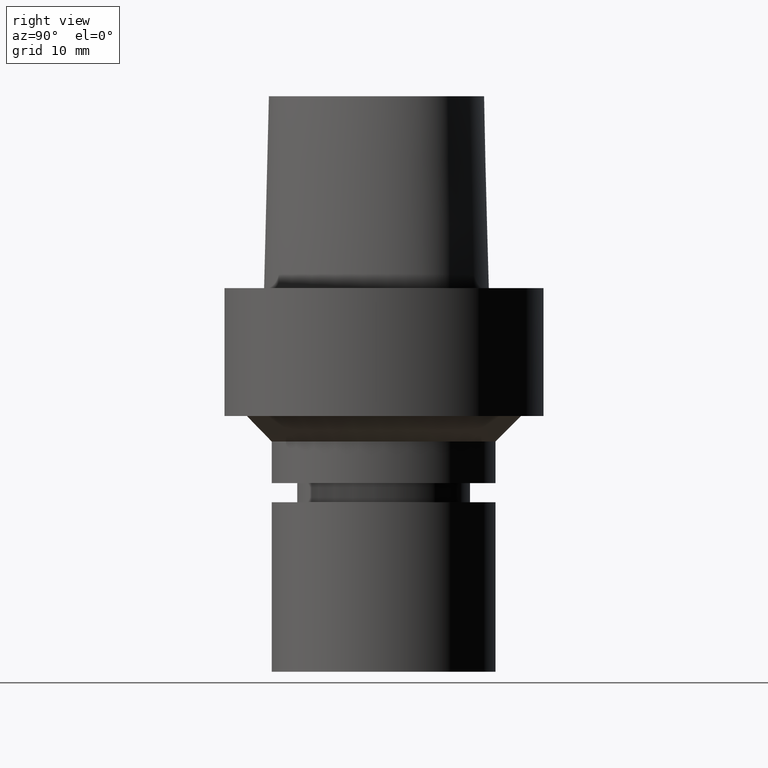
[diagram: clean part render]
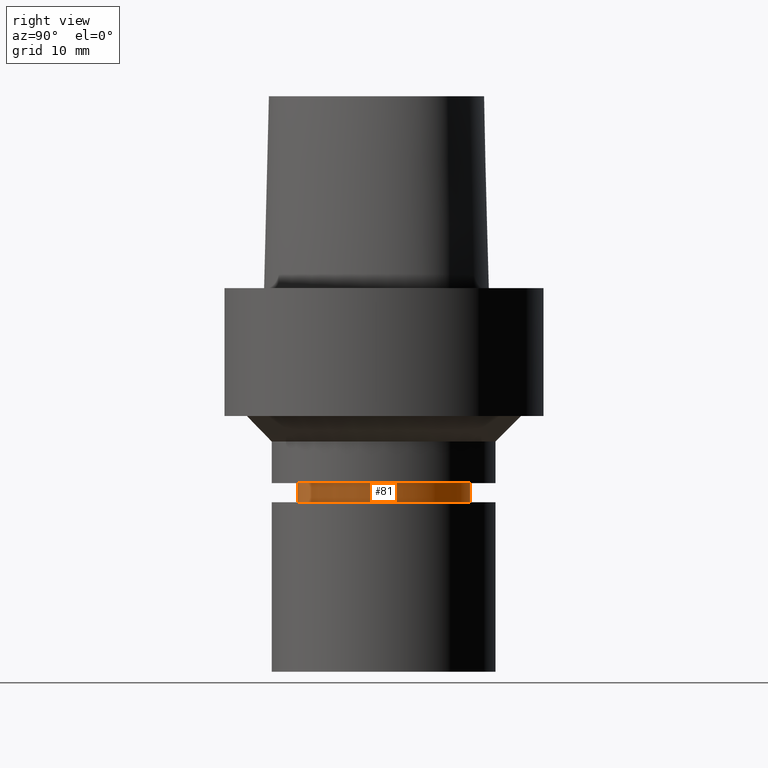
[diagram: same view with one face highlighted and labeled with its STEP entity id]
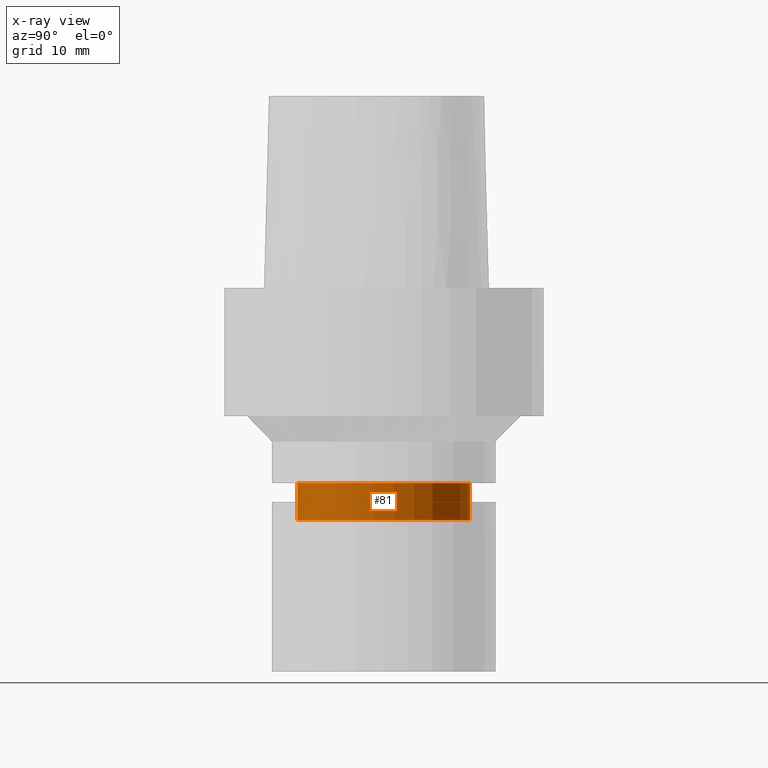
[diagram: x-ray of the same camera — body ghosted, the highlighted face saturated]
A machine part, right view. The second image highlights one B-rep face of the part: STEP entity #81.
The next image is the same camera in x-ray: the body ghosted, the highlighted face saturated — about 0% of this face is hidden behind the body in this view.
In plain terms, the highlighted cylindrical surface (bore or boss wall) has radius 13.5 mm, axis along (0, 0, -1).
Its self-contained STEP definition (entity closure, byte-faithful):
#78=EDGE_CURVE('Unnamed[1]',#186,#186,#187,.T.);
#81=ADVANCED_FACE('Unnamed[1]',(#190,#191),#192,.T.);
#108=EDGE_CURVE('Unnamed[1]',#234,#234,#235,.T.);
#186=VERTEX_POINT('',#326);
#187=CIRCLE('',#327,13.4999999999908);
#190=FACE_BOUND('',#331,.T.);
#191=FACE_BOUND('',#332,.T.);
#192=CYLINDRICAL_SURFACE('',#333,13.4999999999956);
#234=VERTEX_POINT('',#433);
#235=CIRCLE('',#434,13.5000000000005);
#326=CARTESIAN_POINT('',(1.8675863686997E-015,13.4999999999908,-30.4999999999998));
#327=AXIS2_PLACEMENT_3D('',#1008,#1009,#1010);
#331=EDGE_LOOP('',(#1012));
#332=EDGE_LOOP('',(#1013));
#333=AXIS2_PLACEMENT_3D('',#1014,#1015,#1016);
#433=CARTESIAN_POINT('',(2.22410094420044E-015,13.5000000000005,-36.3223248654052));
#434=AXIS2_PLACEMENT_3D('',#1061,#1062,#1063);
#1008=CARTESIAN_POINT('',(1.8675863686997E-015,3.7351727373994E-015,-30.4999999999998));
#1009=DIRECTION('',(6.12323399573677E-017,1.22464679914735E-016,-1.0));
#1010=DIRECTION('',(-1.23259516440783E-032,1.0,1.22464679914735E-016));
#1012=ORIENTED_EDGE('',*,*,#108,.F.);
#1013=ORIENTED_EDGE('',*,*,#78,.T.);
#1014=CARTESIAN_POINT('',(2.04584365645007E-015,4.09168731290014E-015,-33.4111624327025));
#1015=DIRECTION('',(6.12323399573677E-017,1.22464679914735E-016,-1.0));
#1016=DIRECTION('',(-1.23259516440783E-032,1.0,1.22464679914735E-016));
#1061=CARTESIAN_POINT('',(2.22410094420044E-015,4.44820188840088E-015,-36.3223248654052));
#1062=DIRECTION('',(6.12323399573677E-017,1.22464679914735E-016,-1.0));
#1063=DIRECTION('',(-1.23259516440783E-032,1.0,1.22464679914735E-016));